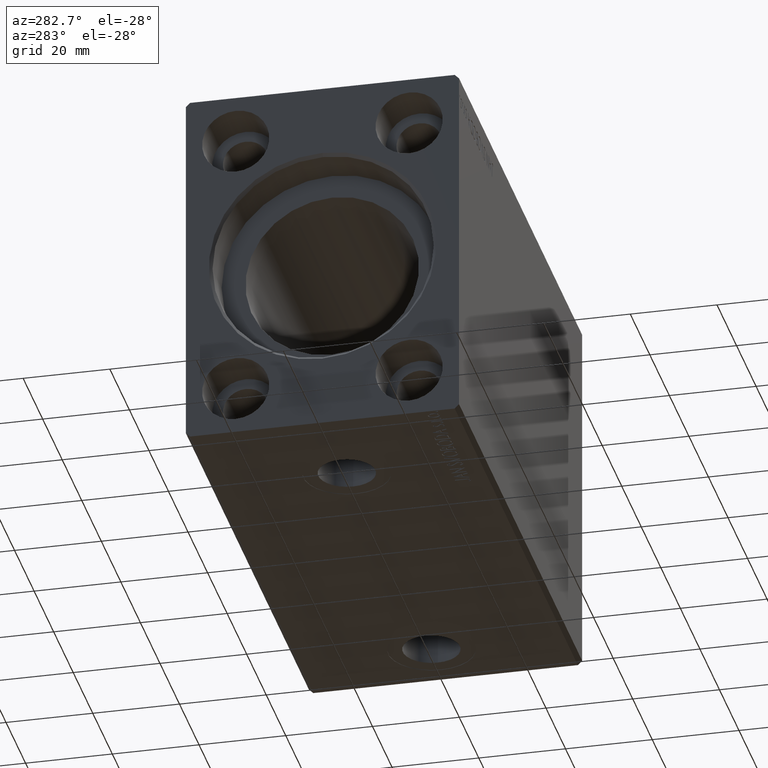
[diagram: clean part render]
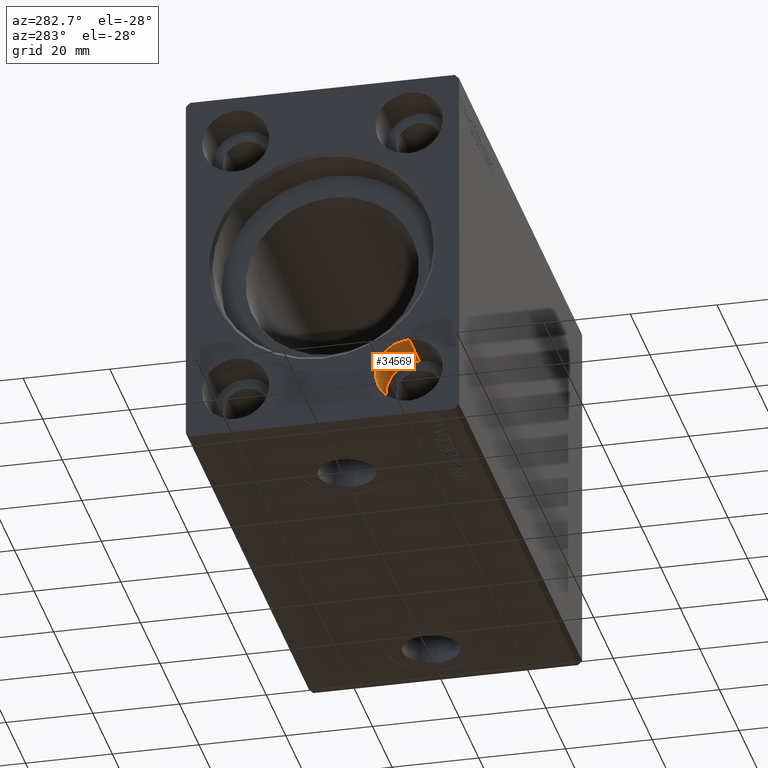
[diagram: same view with one face highlighted and labeled with its STEP entity id]
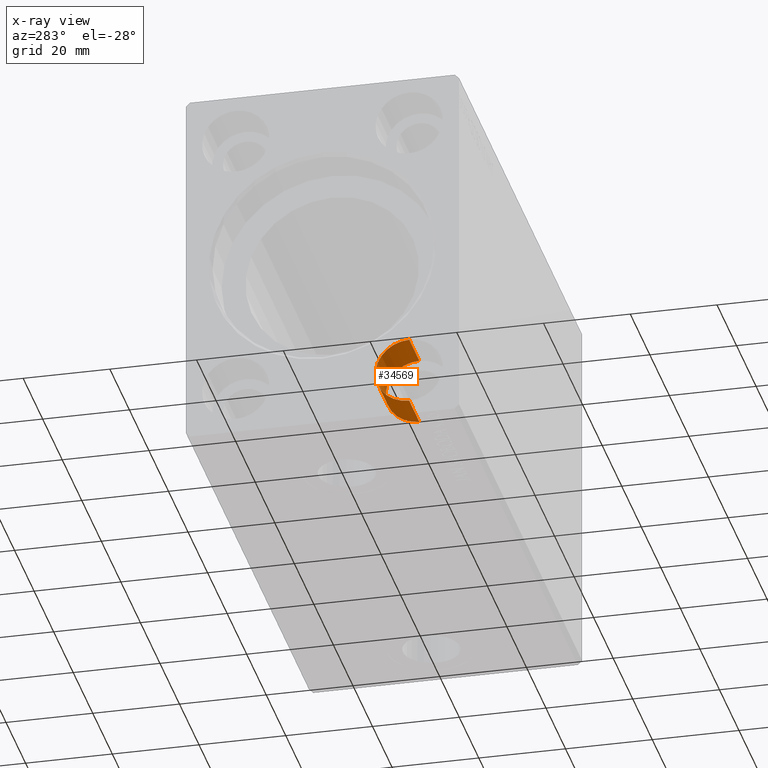
[diagram: x-ray of the same camera — body ghosted, the highlighted face saturated]
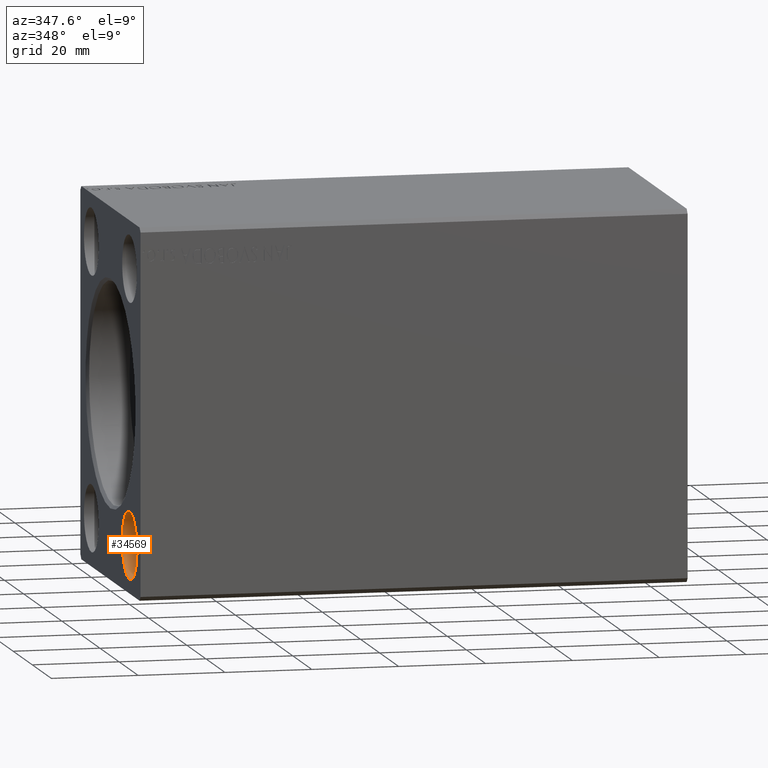
[diagram: same view with one face highlighted and labeled with its STEP entity id]
A machine part, auxiliary view. The second image highlights one B-rep face of the part: STEP entity #34569.
The next image is the same camera in x-ray: the body ghosted, the highlighted face saturated — about 0% of this face is hidden behind the body in this view.
A second angle (auxiliary view) of the same face is appended — the face is thin or edge-on in the first view.
In plain terms, the highlighted cylindrical surface (edge-blend (fillet) strip) has radius 7.75 mm, axis along (-1, -0, -0).
Its self-contained STEP definition (entity closure, byte-faithful):
#711 = CARTESIAN_POINT ( 'NONE',  ( 0.000000000000000000, -19.99999999999999645, -39.24999999999998579 ) ) ;
#1139 = CARTESIAN_POINT ( 'NONE',  ( 10.33000000000000007, -19.99999999999999645, -39.24999999999998579 ) ) ;
#1436 = ORIENTED_EDGE ( 'NONE', *, *, #26276, .T. ) ;
#3341 = AXIS2_PLACEMENT_3D ( 'NONE', #25951, #5939, #6375 ) ;
#5011 = DIRECTION ( 'NONE',  ( 0.000000000000000000, 0.000000000000000000, -1.000000000000000000 ) ) ;
#5840 = EDGE_CURVE ( 'NONE', #25127, #12743, #18783, .T. ) ;
#5939 = DIRECTION ( 'NONE',  ( -1.000000000000000000, -0.000000000000000000, -0.000000000000000000 ) ) ;
#6375 = DIRECTION ( 'NONE',  ( 0.000000000000000000, 0.000000000000000000, 1.000000000000000000 ) ) ;
#8735 = VECTOR ( 'NONE', #17325, 1000.000000000000000 ) ;
#8983 = EDGE_CURVE ( 'NONE', #12743, #25153, #18533, .T. ) ;
#9904 = EDGE_LOOP ( 'NONE', ( #33788, #1436, #26591, #38170 ) ) ;
#11261 = CARTESIAN_POINT ( 'NONE',  ( 0.000000000000000000, -19.99999999999999645, -31.49999999999998579 ) ) ;
#12743 = VERTEX_POINT ( 'NONE', #711 ) ;
#13669 = CARTESIAN_POINT ( 'NONE',  ( 10.33000000000000007, -19.99999999999999645, -23.74999999999998579 ) ) ;
#17325 = DIRECTION ( 'NONE',  ( -1.000000000000000000, -0.000000000000000000, -0.000000000000000000 ) ) ;
#18533 = CIRCLE ( 'NONE', #22673, 7.750000000000000000 ) ;
#18783 = LINE ( 'NONE', #34491, #42469 ) ;
#19383 = CARTESIAN_POINT ( 'NONE',  ( 10.33000000000000007, -19.99999999999999645, -31.49999999999998579 ) ) ;
#20910 = CARTESIAN_POINT ( 'NONE',  ( 0.000000000000000000, -19.99999999999999645, -23.74999999999998579 ) ) ;
#21435 = VERTEX_POINT ( 'NONE', #34229 ) ;
#22673 = AXIS2_PLACEMENT_3D ( 'NONE', #11261, #24379, #5011 ) ;
#23243 = DIRECTION ( 'NONE',  ( 0.000000000000000000, 0.000000000000000000, -1.000000000000000000 ) ) ;
#23342 = LINE ( 'NONE', #13669, #8735 ) ;
#24379 = DIRECTION ( 'NONE',  ( 1.000000000000000000, -0.000000000000000000, -0.000000000000000000 ) ) ;
#25127 = VERTEX_POINT ( 'NONE', #1139 ) ;
#25153 = VERTEX_POINT ( 'NONE', #20910 ) ;
#25951 = CARTESIAN_POINT ( 'NONE',  ( 10.33000000000000007, -19.99999999999999645, -31.49999999999998579 ) ) ;
#26276 = EDGE_CURVE ( 'NONE', #25127, #21435, #30585, .T. ) ;
#26591 = ORIENTED_EDGE ( 'NONE', *, *, #29265, .T. ) ;
#29265 = EDGE_CURVE ( 'NONE', #21435, #25153, #23342, .T. ) ;
#29705 = DIRECTION ( 'NONE',  ( 1.000000000000000000, -0.000000000000000000, -0.000000000000000000 ) ) ;
#30585 = CIRCLE ( 'NONE', #38781, 7.750000000000000000 ) ;
#33788 = ORIENTED_EDGE ( 'NONE', *, *, #5840, .F. ) ;
#34229 = CARTESIAN_POINT ( 'NONE',  ( 10.33000000000000007, -19.99999999999999645, -23.74999999999998579 ) ) ;
#34491 = CARTESIAN_POINT ( 'NONE',  ( 10.33000000000000007, -19.99999999999999645, -39.24999999999998579 ) ) ;
#34569 = ADVANCED_FACE ( 'NONE', ( #35211 ), #41427, .F. ) ;
#35211 = FACE_OUTER_BOUND ( 'NONE', #9904, .T. ) ;
#37919 = DIRECTION ( 'NONE',  ( -1.000000000000000000, -0.000000000000000000, -0.000000000000000000 ) ) ;
#38170 = ORIENTED_EDGE ( 'NONE', *, *, #8983, .F. ) ;
#38781 = AXIS2_PLACEMENT_3D ( 'NONE', #19383, #29705, #23243 ) ;
#41427 = CYLINDRICAL_SURFACE ( 'NONE', #3341, 7.750000000000000000 ) ;
#42469 = VECTOR ( 'NONE', #37919, 1000.000000000000000 ) ;